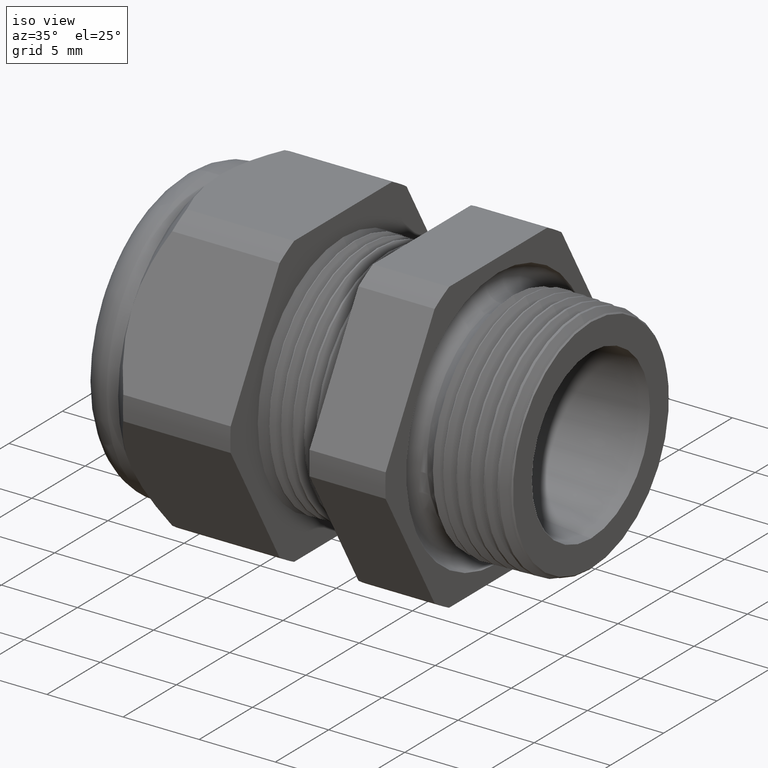
[diagram: clean part render]
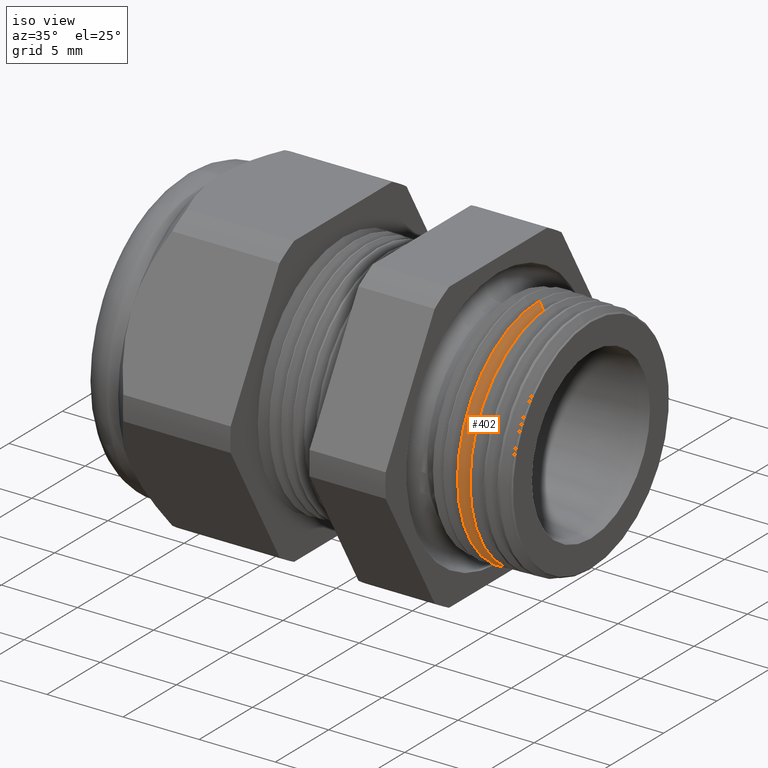
[diagram: same view with one face highlighted and labeled with its STEP entity id]
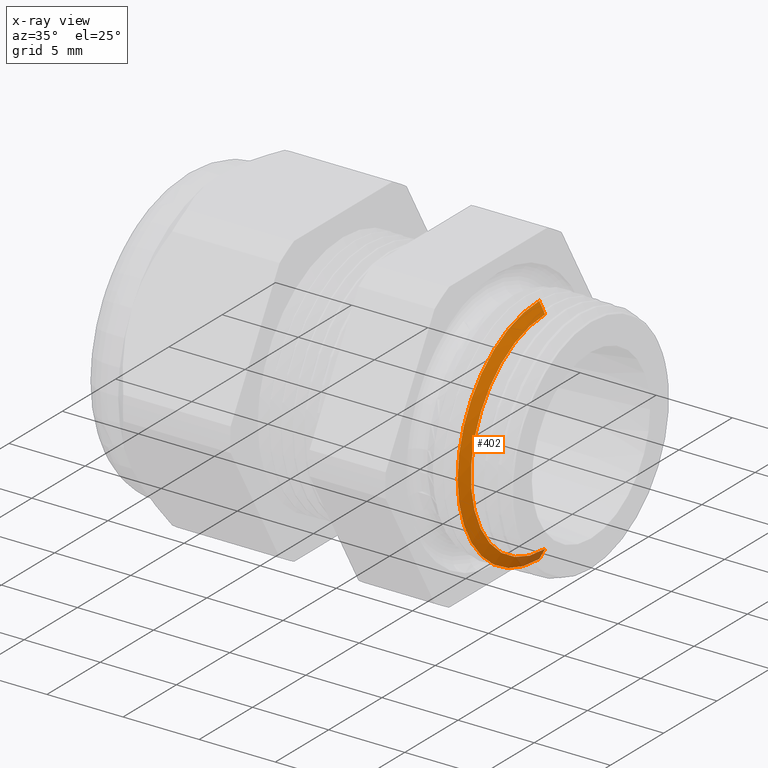
[diagram: x-ray of the same camera — body ghosted, the highlighted face saturated]
A machine part, iso view. The second image highlights one B-rep face of the part: STEP entity #402.
The next image is the same camera in x-ray: the body ghosted, the highlighted face saturated — about 5% of this face is hidden behind the body in this view.
In plain terms, the highlighted conical surface has half-angle 61.5 deg.
Its self-contained STEP definition (entity closure, byte-faithful):
#32 = EDGE_CURVE ( 'NONE', #687, #735, #1190, .T. ) ;
#402 = ADVANCED_FACE ( 'NONE', ( #1767 ), #1766, .T. ) ;
#403 = EDGE_LOOP ( 'NONE', ( #404, #405, #407, #408 ) ) ;
#404 = ORIENTED_EDGE ( 'NONE', *, *, #684, .F. ) ;
#405 = ORIENTED_EDGE ( 'NONE', *, *, #406, .F. ) ;
#406 = EDGE_CURVE ( 'NONE', #718, #706, #1761, .T. ) ;
#407 = ORIENTED_EDGE ( 'NONE', *, *, #665, .T. ) ;
#408 = ORIENTED_EDGE ( 'NONE', *, *, #32, .T. ) ;
#665 = EDGE_CURVE ( 'NONE', #718, #687, #2220, .T. ) ;
#684 = EDGE_CURVE ( 'NONE', #706, #735, #2235, .T. ) ;
#687 = VERTEX_POINT ( 'NONE', #2226 ) ;
#706 = VERTEX_POINT ( 'NONE', #2317 ) ;
#718 = VERTEX_POINT ( 'NONE', #2298 ) ;
#735 = VERTEX_POINT ( 'NONE', #2337 ) ;
#1187 = DIRECTION ( 'NONE',  ( 0.0000000000000000000, 0.0000000000000000000, 1.000000000000000000 ) ) ;
#1188 = DIRECTION ( 'NONE',  ( 1.000000000000000000, 0.0000000000000000000, 0.0000000000000000000 ) ) ;
#1189 = AXIS2_PLACEMENT_3D ( 'NONE', #1195, #1188, #1187 ) ;
#1190 = CIRCLE ( 'NONE', #1189, 0.3017137729299909600 ) ;
#1195 = CARTESIAN_POINT ( 'NONE',  ( -0.2034856000580642900, 0.0000000000000000000, 0.0000000000000000000 ) ) ;
#1758 = DIRECTION ( 'NONE',  ( 0.0000000000000000000, 0.0000000000000000000, -1.000000000000000000 ) ) ;
#1759 = DIRECTION ( 'NONE',  ( 1.000000000000000000, 0.0000000000000000000, 0.0000000000000000000 ) ) ;
#1760 = AXIS2_PLACEMENT_3D ( 'NONE', #1765, #1759, #1758 ) ;
#1761 = CIRCLE ( 'NONE', #1760, 0.2740598328590288000 ) ;
#1762 = DIRECTION ( 'NONE',  ( 0.0000000000000000000, 0.0000000000000000000, 1.000000000000000000 ) ) ;
#1763 = DIRECTION ( 'NONE',  ( -1.000000000000000000, 0.0000000000000000000, 0.0000000000000000000 ) ) ;
#1764 = AXIS2_PLACEMENT_3D ( 'NONE', #1772, #1763, #1762 ) ;
#1765 = CARTESIAN_POINT ( 'NONE',  ( -0.1884707356790751900, 0.0000000000000000000, 0.0000000000000000000 ) ) ;
#1766 = CONICAL_SURFACE ( 'NONE', #1764, 0.3045029506528588200, 1.073377489976501000 ) ;
#1767 = FACE_OUTER_BOUND ( 'NONE', #403, .T. ) ;
#1772 = CARTESIAN_POINT ( 'NONE',  ( -0.2049999999999999600, 0.0000000000000000000, 0.0000000000000000000 ) ) ;
#2217 = DIRECTION ( 'NONE',  ( -0.4771587602596187900, 0.0000000000000000000, 0.8788171126619597200 ) ) ;
#2218 = VECTOR ( 'NONE', #2217, 39.37007874015748900 ) ;
#2219 = CARTESIAN_POINT ( 'NONE',  ( -0.2049999999999999600, 0.0000000000000000000, 0.3045029506528588200 ) ) ;
#2220 = LINE ( 'NONE', #2219, #2218 ) ;
#2226 = CARTESIAN_POINT ( 'NONE',  ( -0.2034856000580642900, 0.0000000000000000000, 0.3017137729299909600 ) ) ;
#2232 = DIRECTION ( 'NONE',  ( -0.4771587602596187900, 1.076240564057388000E-016, -0.8788171126619597200 ) ) ;
#2233 = VECTOR ( 'NONE', #2232, 39.37007874015748900 ) ;
#2234 = CARTESIAN_POINT ( 'NONE',  ( -0.2049999999999999600, 3.729085638479479300E-017, -0.3045029506528588200 ) ) ;
#2235 = LINE ( 'NONE', #2234, #2233 ) ;
#2298 = CARTESIAN_POINT ( 'NONE',  ( -0.1884707356790751900, 0.0000000000000000000, 0.2740598328590288000 ) ) ;
#2317 = CARTESIAN_POINT ( 'NONE',  ( -0.1884707356790751900, 3.525596516815264600E-017, -0.2740598328590288000 ) ) ;
#2337 = CARTESIAN_POINT ( 'NONE',  ( -0.2034856000580642900, 3.695407613102439400E-017, -0.3017137729299909600 ) ) ;